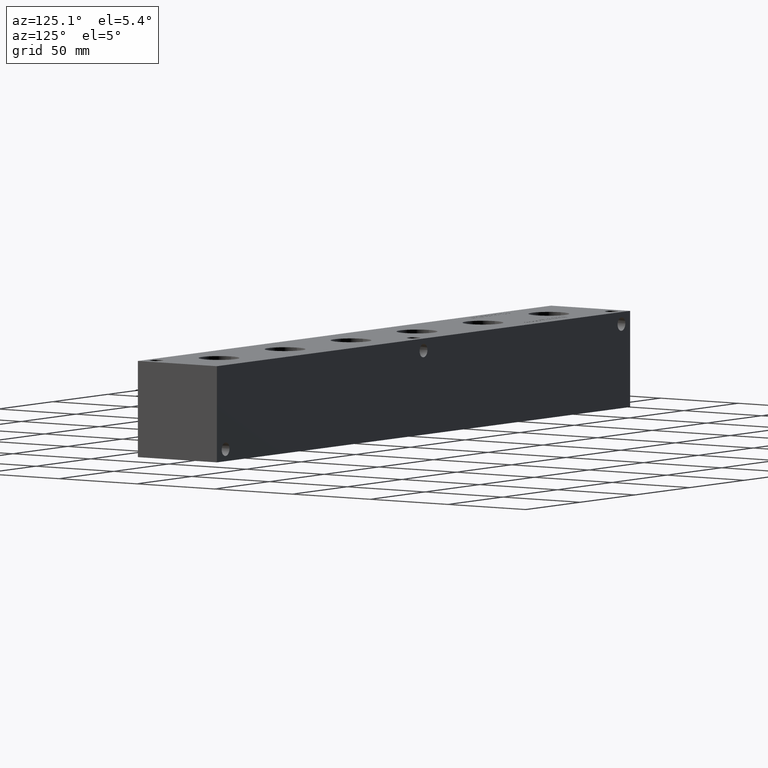
[diagram: clean part render]
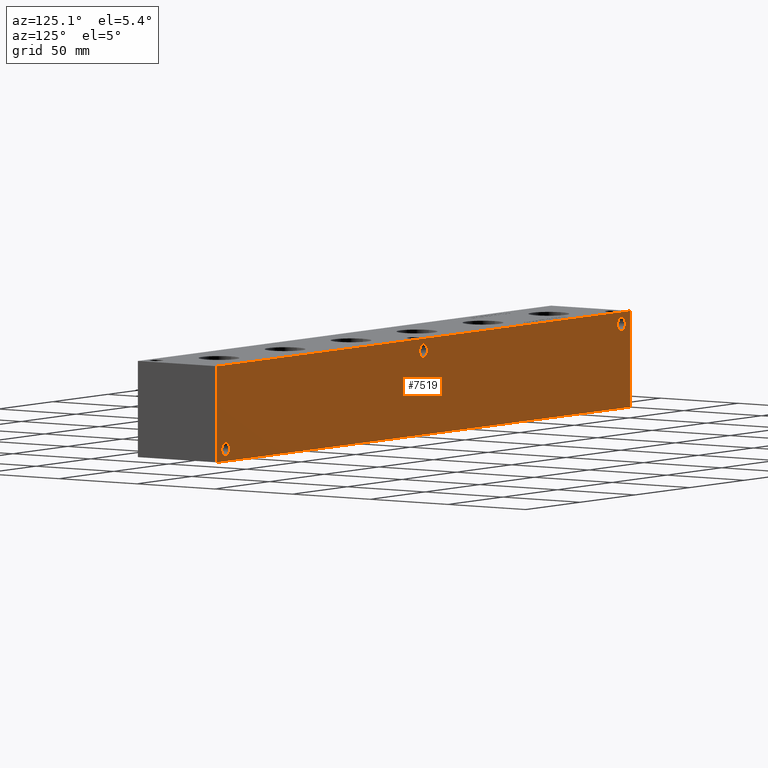
[diagram: same view with one face highlighted and labeled with its STEP entity id]
A machine part, auxiliary view. The second image highlights one B-rep face of the part: STEP entity #7519.
In plain terms, the highlighted planar face has unit normal (0, 1, 0).
Its self-contained STEP definition (entity closure, byte-faithful):
#136=CIRCLE('',#7833,3.5687);
#139=CIRCLE('',#7842,3.5687);
#142=CIRCLE('',#7851,3.5687);
#228=FACE_BOUND('',#1280,.T.);
#229=FACE_BOUND('',#1281,.T.);
#230=FACE_BOUND('',#1282,.T.);
#459=PLANE('',#7916);
#843=FACE_OUTER_BOUND('',#1279,.T.);
#1279=EDGE_LOOP('',(#6675,#6676,#6677,#6678));
#1280=EDGE_LOOP('',(#6679));
#1281=EDGE_LOOP('',(#6680));
#1282=EDGE_LOOP('',(#6681));
#1555=LINE('',#11725,#2246);
#1984=LINE('',#12984,#2675);
#1985=LINE('',#12987,#2676);
#1986=LINE('',#12988,#2677);
#2246=VECTOR('',#8299,10.);
#2675=VECTOR('',#9364,10.);
#2676=VECTOR('',#9367,10.);
#2677=VECTOR('',#9368,10.);
#3225=VERTEX_POINT('',#11722);
#3226=VERTEX_POINT('',#11724);
#3559=VERTEX_POINT('',#12818);
#3564=VERTEX_POINT('',#12834);
#3569=VERTEX_POINT('',#12850);
#3609=VERTEX_POINT('',#12980);
#3611=VERTEX_POINT('',#12986);
#4083=EDGE_CURVE('',#3225,#3226,#1555,.T.);
#4564=EDGE_CURVE('',#3559,#3559,#136,.T.);
#4573=EDGE_CURVE('',#3564,#3564,#139,.T.);
#4582=EDGE_CURVE('',#3569,#3569,#142,.T.);
#4642=EDGE_CURVE('',#3609,#3226,#1984,.T.);
#4643=EDGE_CURVE('',#3611,#3609,#1985,.T.);
#4644=EDGE_CURVE('',#3611,#3225,#1986,.T.);
#6675=ORIENTED_EDGE('',*,*,#4643,.T.);
#6676=ORIENTED_EDGE('',*,*,#4642,.T.);
#6677=ORIENTED_EDGE('',*,*,#4083,.F.);
#6678=ORIENTED_EDGE('',*,*,#4644,.F.);
#6679=ORIENTED_EDGE('',*,*,#4564,.T.);
#6680=ORIENTED_EDGE('',*,*,#4573,.T.);
#6681=ORIENTED_EDGE('',*,*,#4582,.T.);
#7519=ADVANCED_FACE('',(#843,#228,#229,#230),#459,.T.);
#7833=AXIS2_PLACEMENT_3D('',#12820,#9168,#9169);
#7842=AXIS2_PLACEMENT_3D('',#12836,#9188,#9189);
#7851=AXIS2_PLACEMENT_3D('',#12852,#9208,#9209);
#7916=AXIS2_PLACEMENT_3D('',#12985,#9365,#9366);
#8299=DIRECTION('',(-1.,0.,0.));
#9168=DIRECTION('center_axis',(0.,-1.,0.));
#9169=DIRECTION('ref_axis',(1.,0.,0.));
#9188=DIRECTION('center_axis',(0.,-1.,0.));
#9189=DIRECTION('ref_axis',(1.,0.,0.));
#9208=DIRECTION('center_axis',(0.,-1.,0.));
#9209=DIRECTION('ref_axis',(1.,0.,0.));
#9364=DIRECTION('',(0.,0.,1.));
#9365=DIRECTION('center_axis',(0.,1.,0.));
#9366=DIRECTION('ref_axis',(-1.,0.,0.));
#9367=DIRECTION('',(-1.,0.,0.));
#9368=DIRECTION('',(0.,0.,1.));
#11722=CARTESIAN_POINT('',(377.825,50.8,50.8));
#11724=CARTESIAN_POINT('',(0.,50.8,50.8));
#11725=CARTESIAN_POINT('',(377.825,50.8,50.8));
#12818=CARTESIAN_POINT('',(366.3315,50.8,6.35));
#12820=CARTESIAN_POINT('Origin',(369.9002,50.8,6.35));
#12834=CARTESIAN_POINT('',(4.3561,50.8,44.45));
#12836=CARTESIAN_POINT('Origin',(7.9248,50.8,44.45));
#12850=CARTESIAN_POINT('',(185.3311,50.8,44.45));
#12852=CARTESIAN_POINT('Origin',(188.8998,50.8,44.45));
#12980=CARTESIAN_POINT('',(0.,50.8,0.));
#12984=CARTESIAN_POINT('',(0.,50.8,0.));
#12985=CARTESIAN_POINT('Origin',(377.825,50.8,0.));
#12986=CARTESIAN_POINT('',(377.825,50.8,0.));
#12987=CARTESIAN_POINT('',(377.825,50.8,0.));
#12988=CARTESIAN_POINT('',(377.825,50.8,0.));